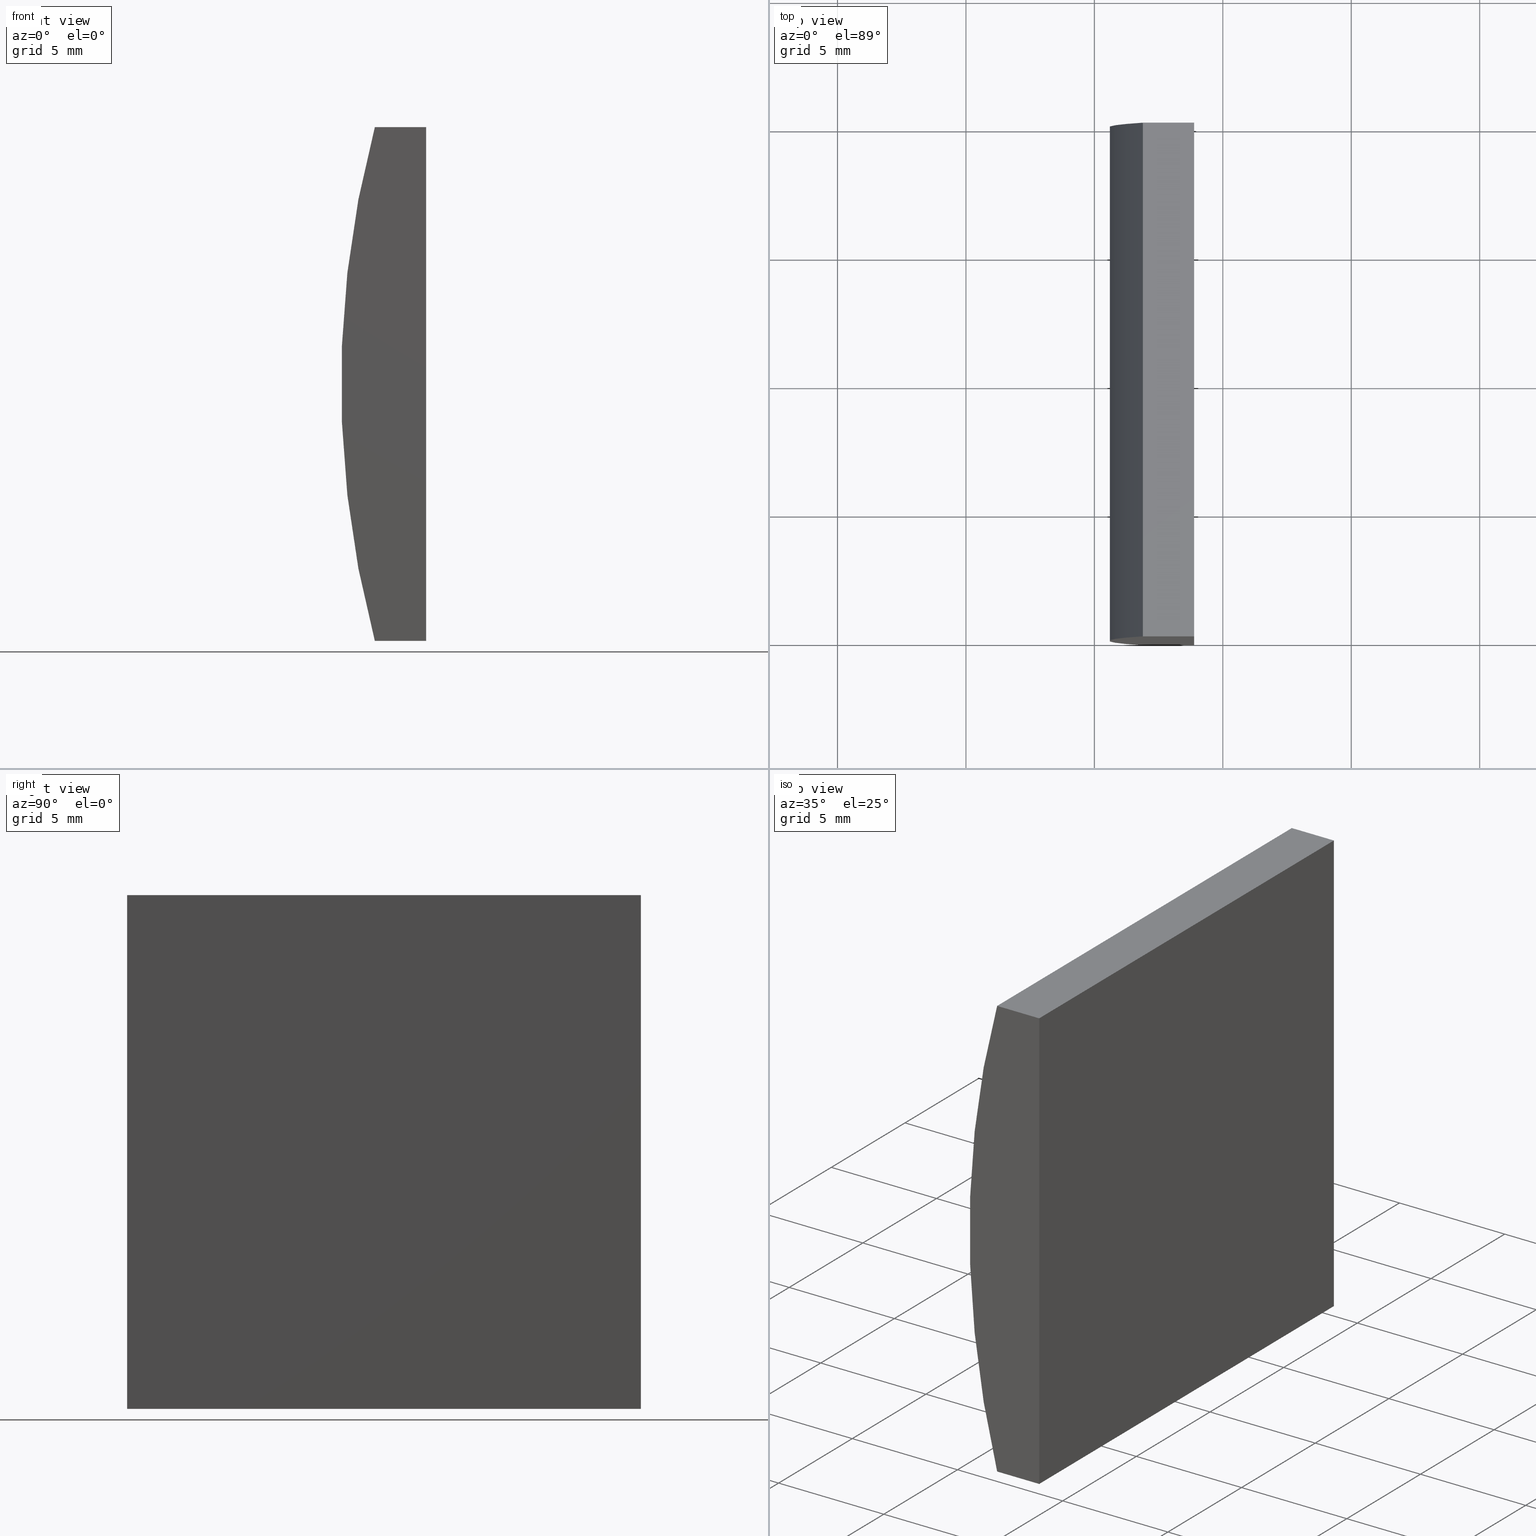
[diagram: canonical four-view strip — front | top / right | iso, engineering-drawing reading convention]
A machine part, canonical four-view strip (front | top / right | iso — engineering-drawing reading convention). The complete STEP part file that produces these views, byte-faithful:
ISO-10303-21;
HEADER;
FILE_DESCRIPTION (( 'STEP AP214' ),
    '1' );
FILE_NAME ('155030.STEP',
    '2019-06-17T06:29:10',
    ( 'user' ),
    ( '΢���й�' ),
    'SwSTEP 2.0',
    'SolidWorks 2016',
    '' );
FILE_SCHEMA (( 'AUTOMOTIVE_DESIGN' ));
ENDSEC;

DATA;
#1 =( GEOMETRIC_REPRESENTATION_CONTEXT ( 3 ) GLOBAL_UNCERTAINTY_ASSIGNED_CONTEXT ( ( #176 ) ) GLOBAL_UNIT_ASSIGNED_CONTEXT ( ( #184, #175, #6 ) ) REPRESENTATION_CONTEXT ( 'NONE', 'WORKASPACE' ) );
#2 = PRESENTATION_STYLE_ASSIGNMENT (( #129 ) ) ;
#3 = VECTOR ( 'NONE', #66, 1000.000000000000000 ) ;
#4 = VECTOR ( 'NONE', #86, 1000.000000000000000 ) ;
#5 = CARTESIAN_POINT ( 'NONE',  ( -31.11479566514874100, 20.00000000000000000, -9.999999999999992900 ) ) ;
#6 =( NAMED_UNIT ( * ) SI_UNIT ( $, .STERADIAN. ) SOLID_ANGLE_UNIT ( ) );
#7 = FILL_AREA_STYLE ('',( #202 ) ) ;
#8 = ORIENTED_EDGE ( 'NONE', *, *, #19, .T. ) ;
#9 = CARTESIAN_POINT ( 'NONE',  ( -31.11479566514874100, 20.00000000000000000, -9.999999999999992900 ) ) ;
#10 = ORIENTED_EDGE ( 'NONE', *, *, #197, .F. ) ;
#11 = ORIENTED_EDGE ( 'NONE', *, *, #197, .T. ) ;
#12 = EDGE_LOOP ( 'NONE', ( #132, #143, #78, #101 ) ) ;
#13 = SHAPE_DEFINITION_REPRESENTATION ( #137, #39 ) ;
#14 = VERTEX_POINT ( 'NONE', #141 ) ;
#15 = ADVANCED_FACE ( 'NONE', ( #193 ), #200, .F. ) ;
#16 = PLANE ( 'NONE',  #63 ) ;
#17 = DIRECTION ( 'NONE',  ( 1.000000000000000000, 0.0000000000000000000, 0.0000000000000000000 ) ) ;
#18 = ORIENTED_EDGE ( 'NONE', *, *, #22, .T. ) ;
#19 = EDGE_CURVE ( 'NONE', #187, #62, #117, .T. ) ;
#20 = CARTESIAN_POINT ( 'NONE',  ( -33.11329443411465000, 20.00000000000000000, -10.00000000000000000 ) ) ;
#21 = ORIENTED_EDGE ( 'NONE', *, *, #170, .F. ) ;
#22 = EDGE_CURVE ( 'NONE', #14, #187, #148, .T. ) ;
#23 = SURFACE_SIDE_STYLE ('',( #80 ) ) ;
#24 = CARTESIAN_POINT ( 'NONE',  ( -31.11479566514874100, 20.00000000000000000, -9.999999999999992900 ) ) ;
#25 = PRODUCT_DEFINITION_CONTEXT ( 'detailed design', #64, 'design' ) ;
#26 = AXIS2_PLACEMENT_3D ( 'NONE', #30, #82, #58 ) ;
#27 = AXIS2_PLACEMENT_3D ( 'NONE', #146, #38, #53 ) ;
#28 = LINE ( 'NONE', #5, #169 ) ;
#29 = UNCERTAINTY_MEASURE_WITH_UNIT (LENGTH_MEASURE( 1.000000000000000100E-005 ), #164, 'distance_accuracy_value', 'NONE');
#30 = CARTESIAN_POINT ( 'NONE',  ( 4.355204334851265500, 0.0000000000000000000, 4.286263797015675000E-017 ) ) ;
#31 = APPLICATION_PROTOCOL_DEFINITION ( 'draft international standard', 'automotive_design', 1998, #64 ) ;
#32 = CLOSED_SHELL ( 'NONE', ( #52, #173, #177, #15, #90, #49 ) ) ;
#33 =( NAMED_UNIT ( * ) PLANE_ANGLE_UNIT ( ) SI_UNIT ( $, .RADIAN. ) );
#34 = SURFACE_SIDE_STYLE ('',( #138 ) ) ;
#35 = DIRECTION ( 'NONE',  ( 0.0000000000000000000, 0.0000000000000000000, 1.000000000000000000 ) ) ;
#36 = VECTOR ( 'NONE', #113, 1000.000000000000000 ) ;
#37 = DIRECTION ( 'NONE',  ( -0.0000000000000000000, -1.000000000000000000, -0.0000000000000000000 ) ) ;
#38 = DIRECTION ( 'NONE',  ( 0.0000000000000000000, 1.000000000000000000, 0.0000000000000000000 ) ) ;
#39 = ADVANCED_BREP_SHAPE_REPRESENTATION ( '155030', ( #186, #88 ), #48 ) ;
#40 = DIRECTION ( 'NONE',  ( -1.000000000000000000, 0.0000000000000000000, -0.0000000000000000000 ) ) ;
#41 = VECTOR ( 'NONE', #201, 1000.000000000000000 ) ;
#42 = EDGE_CURVE ( 'NONE', #62, #130, #61, .T. ) ;
#43 = AXIS2_PLACEMENT_3D ( 'NONE', #180, #124, #40 ) ;
#44 = DIRECTION ( 'NONE',  ( -0.0000000000000000000, -1.000000000000000000, -0.0000000000000000000 ) ) ;
#45 = VERTEX_POINT ( 'NONE', #69 ) ;
#46 = VECTOR ( 'NONE', #44, 1000.000000000000000 ) ;
#47 = EDGE_CURVE ( 'NONE', #199, #130, #134, .T. ) ;
#48 =( GEOMETRIC_REPRESENTATION_CONTEXT ( 3 ) GLOBAL_UNCERTAINTY_ASSIGNED_CONTEXT ( ( #116 ) ) GLOBAL_UNIT_ASSIGNED_CONTEXT ( ( #57, #50, #51 ) ) REPRESENTATION_CONTEXT ( 'NONE', 'WORKASPACE' ) );
#49 = ADVANCED_FACE ( 'NONE', ( #188 ), #114, .F. ) ;
#50 =( NAMED_UNIT ( * ) PLANE_ANGLE_UNIT ( ) SI_UNIT ( $, .RADIAN. ) );
#51 =( NAMED_UNIT ( * ) SI_UNIT ( $, .STERADIAN. ) SOLID_ANGLE_UNIT ( ) );
#52 = ADVANCED_FACE ( 'NONE', ( #150 ), #105, .T. ) ;
#53 = DIRECTION ( 'NONE',  ( 0.0000000000000000000, -0.0000000000000000000, 1.000000000000000000 ) ) ;
#54 = DIRECTION ( 'NONE',  ( 0.0000000000000000000, 1.000000000000000000, 0.0000000000000000000 ) ) ;
#55 = VECTOR ( 'NONE', #70, 1000.000000000000000 ) ;
#56 = FACE_OUTER_BOUND ( 'NONE', #12, .T. ) ;
#57 =( LENGTH_UNIT ( ) NAMED_UNIT ( * ) SI_UNIT ( .MILLI., .METRE. ) );
#58 = DIRECTION ( 'NONE',  ( 0.0000000000000000000, 0.0000000000000000000, 1.000000000000000000 ) ) ;
#59 = EDGE_CURVE ( 'NONE', #45, #172, #107, .T. ) ;
#60 = EDGE_CURVE ( 'NONE', #172, #204, #119, .T. ) ;
#61 = CIRCLE ( 'NONE', #26, 38.78000000000000100 ) ;
#62 = VERTEX_POINT ( 'NONE', #125 ) ;
#63 = AXIS2_PLACEMENT_3D ( 'NONE', #121, #54, #110 ) ;
#64 = APPLICATION_CONTEXT ( 'automotive_design' ) ;
#65 = APPLICATION_CONTEXT ( 'automotive_design' ) ;
#66 = DIRECTION ( 'NONE',  ( 1.000000000000000000, 0.0000000000000000000, 0.0000000000000000000 ) ) ;
#67 = CIRCLE ( 'NONE', #185, 38.78000000000000100 ) ;
#68 = LINE ( 'NONE', #131, #36 ) ;
#69 = CARTESIAN_POINT ( 'NONE',  ( -31.11479566514873700, 20.00000000000000000, 10.00000000000000000 ) ) ;
#70 = DIRECTION ( 'NONE',  ( 1.000000000000000000, 0.0000000000000000000, 0.0000000000000000000 ) ) ;
#71 = ORIENTED_EDGE ( 'NONE', *, *, #22, .F. ) ;
#72 = CARTESIAN_POINT ( 'NONE',  ( -31.11479566514874100, 0.0000000000000000000, -9.999999999999992900 ) ) ;
#73 = AXIS2_PLACEMENT_3D ( 'NONE', #161, #84, #178 ) ;
#74 = APPLICATION_PROTOCOL_DEFINITION ( 'draft international standard', 'automotive_design', 1998, #65 ) ;
#75 = ORIENTED_EDGE ( 'NONE', *, *, #189, .F. ) ;
#76 = VECTOR ( 'NONE', #91, 1000.000000000000000 ) ;
#77 = PRESENTATION_STYLE_ASSIGNMENT (( #144 ) ) ;
#78 = ORIENTED_EDGE ( 'NONE', *, *, #59, .T. ) ;
#79 = PRODUCT_DEFINITION ( 'δ֪', '', #106, #25 ) ;
#80 = SURFACE_STYLE_FILL_AREA ( #160 ) ;
#81 = ORIENTED_EDGE ( 'NONE', *, *, #190, .F. ) ;
#82 = DIRECTION ( 'NONE',  ( 0.0000000000000000000, 1.000000000000000000, 0.0000000000000000000 ) ) ;
#83 = CARTESIAN_POINT ( 'NONE',  ( 4.355204334851265500, 20.00000000000000000, 4.286263797015675000E-017 ) ) ;
#84 = DIRECTION ( 'NONE',  ( -0.0000000000000000000, -1.000000000000000000, -0.0000000000000000000 ) ) ;
#85 = DIRECTION ( 'NONE',  ( -3.469446951953615200E-016, -0.0000000000000000000, -1.000000000000000000 ) ) ;
#86 = DIRECTION ( 'NONE',  ( -1.000000000000000000, -0.0000000000000000000, -3.472053128908184100E-015 ) ) ;
#87 = ORIENTED_EDGE ( 'NONE', *, *, #181, .T. ) ;
#88 = AXIS2_PLACEMENT_3D ( 'NONE', #96, #195, #17 ) ;
#89 = EDGE_LOOP ( 'NONE', ( #157, #98, #71, #10 ) ) ;
#90 = ADVANCED_FACE ( 'NONE', ( #56 ), #16, .T. ) ;
#91 = DIRECTION ( 'NONE',  ( -1.000000000000000000, -0.0000000000000000000, -3.472053128908184100E-015 ) ) ;
#92 = COLOUR_RGB ( '',1.000000000000000000, 1.000000000000000000, 1.000000000000000000 ) ;
#93 = DIRECTION ( 'NONE',  ( -1.000000000000000000, 0.0000000000000000000, 3.469446951953615200E-016 ) ) ;
#94 = CARTESIAN_POINT ( 'NONE',  ( -33.11329443411465000, 20.00000000000000000, 10.00000000000000000 ) ) ;
#95 = CARTESIAN_POINT ( 'NONE',  ( -33.11329443411465000, 20.00000000000000000, -10.00000000000000000 ) ) ;
#96 = CARTESIAN_POINT ( 'NONE',  ( 0.0000000000000000000, 0.0000000000000000000, 0.0000000000000000000 ) ) ;
#97 = VECTOR ( 'NONE', #85, 1000.000000000000000 ) ;
#98 = ORIENTED_EDGE ( 'NONE', *, *, #19, .F. ) ;
#99 = FILL_AREA_STYLE_COLOUR ( '', #92 ) ;
#100 = CARTESIAN_POINT ( 'NONE',  ( -33.11329443411465000, 20.00000000000000000, 10.00000000000000000 ) ) ;
#101 = ORIENTED_EDGE ( 'NONE', *, *, #60, .T. ) ;
#102 = PRESENTATION_LAYER_ASSIGNMENT (  '', '', ( #147 ) ) ;
#103 = VECTOR ( 'NONE', #128, 1000.000000000000000 ) ;
#104 = ORIENTED_EDGE ( 'NONE', *, *, #194, .T. ) ;
#105 = CYLINDRICAL_SURFACE ( 'NONE', #73, 38.78000000000000100 ) ;
#106 = PRODUCT_DEFINITION_FORMATION_WITH_SPECIFIED_SOURCE ( '�κ�', '', #149, .NOT_KNOWN. ) ;
#107 = LINE ( 'NONE', #9, #41 ) ;
#108 = ORIENTED_EDGE ( 'NONE', *, *, #47, .F. ) ;
#109 = ORIENTED_EDGE ( 'NONE', *, *, #60, .F. ) ;
#110 = DIRECTION ( 'NONE',  ( 0.0000000000000000000, -0.0000000000000000000, 1.000000000000000000 ) ) ;
#111 = PRESENTATION_LAYER_ASSIGNMENT (  '', '', ( #126 ) ) ;
#112 = CARTESIAN_POINT ( 'NONE',  ( -31.11479566514874100, 0.0000000000000000000, -9.999999999999992900 ) ) ;
#113 = DIRECTION ( 'NONE',  ( -0.0000000000000000000, -1.000000000000000000, -0.0000000000000000000 ) ) ;
#114 = PLANE ( 'NONE',  #27 ) ;
#115 = CARTESIAN_POINT ( 'NONE',  ( -33.11329443411465000, 0.0000000000000000000, -10.00000000000000000 ) ) ;
#116 = UNCERTAINTY_MEASURE_WITH_UNIT (LENGTH_MEASURE( 1.000000000000000100E-005 ), #57, 'distance_accuracy_value', 'NONE');
#117 = LINE ( 'NONE', #115, #4 ) ;
#118 = ORIENTED_EDGE ( 'NONE', *, *, #194, .F. ) ;
#119 = LINE ( 'NONE', #20, #76 ) ;
#120 = FACE_OUTER_BOUND ( 'NONE', #142, .T. ) ;
#121 = CARTESIAN_POINT ( 'NONE',  ( 4.355204334851265500, 20.00000000000000000, 4.286263797015675000E-017 ) ) ;
#122 = CARTESIAN_POINT ( 'NONE',  ( -31.11479566514874100, 20.00000000000000000, -9.999999999999992900 ) ) ;
#123 = ORIENTED_EDGE ( 'NONE', *, *, #59, .F. ) ;
#124 = DIRECTION ( 'NONE',  ( 0.0000000000000000000, 0.0000000000000000000, -1.000000000000000000 ) ) ;
#125 = CARTESIAN_POINT ( 'NONE',  ( -33.11329443411465000, 0.0000000000000000000, -10.00000000000000000 ) ) ;
#126 = STYLED_ITEM ( 'NONE', ( #77 ), #39 ) ;
#127 = FACE_OUTER_BOUND ( 'NONE', #168, .T. ) ;
#128 = DIRECTION ( 'NONE',  ( -0.0000000000000000000, -1.000000000000000000, -0.0000000000000000000 ) ) ;
#129 = SURFACE_STYLE_USAGE ( .BOTH. , #23 ) ;
#130 = VERTEX_POINT ( 'NONE', #192 ) ;
#131 = CARTESIAN_POINT ( 'NONE',  ( -33.11329443411465000, 20.00000000000000000, -10.00000000000000000 ) ) ;
#132 = ORIENTED_EDGE ( 'NONE', *, *, #189, .T. ) ;
#133 = MECHANICAL_DESIGN_GEOMETRIC_PRESENTATION_REPRESENTATION (  '', ( #147 ), #1 ) ;
#134 = LINE ( 'NONE', #100, #46 ) ;
#135 = EDGE_LOOP ( 'NONE', ( #152, #108, #75, #87 ) ) ;
#136 = MECHANICAL_DESIGN_GEOMETRIC_PRESENTATION_REPRESENTATION (  '', ( #126 ), #158 ) ;
#137 = PRODUCT_DEFINITION_SHAPE ( 'NONE', 'NONE',  #79 ) ;
#138 = SURFACE_STYLE_FILL_AREA ( #7 ) ;
#139 = AXIS2_PLACEMENT_3D ( 'NONE', #122, #93, #163 ) ;
#140 = DIRECTION ( 'NONE',  ( 0.0000000000000000000, 1.000000000000000000, 0.0000000000000000000 ) ) ;
#141 = CARTESIAN_POINT ( 'NONE',  ( -31.11479566514873700, 0.0000000000000000000, 10.00000000000000000 ) ) ;
#142 = EDGE_LOOP ( 'NONE', ( #11, #118, #81, #171 ) ) ;
#143 = ORIENTED_EDGE ( 'NONE', *, *, #190, .T. ) ;
#144 = SURFACE_STYLE_USAGE ( .BOTH. , #34 ) ;
#145 = CARTESIAN_POINT ( 'NONE',  ( -31.11479566514873700, 20.00000000000000000, 10.00000000000000000 ) ) ;
#146 = CARTESIAN_POINT ( 'NONE',  ( 4.355204334851265500, 0.0000000000000000000, 4.286263797015675000E-017 ) ) ;
#147 = STYLED_ITEM ( 'NONE', ( #2 ), #186 ) ;
#148 = LINE ( 'NONE', #72, #97 ) ;
#149 = PRODUCT ( '155030', '155030', '', ( #165 ) ) ;
#150 = FACE_OUTER_BOUND ( 'NONE', #135, .T. ) ;
#151 = ORIENTED_EDGE ( 'NONE', *, *, #170, .T. ) ;
#152 = ORIENTED_EDGE ( 'NONE', *, *, #42, .T. ) ;
#153 = EDGE_LOOP ( 'NONE', ( #8, #196, #109, #151 ) ) ;
#154 = DIRECTION ( 'NONE',  ( 1.000000000000000000, 0.0000000000000000000, 3.472053128908184100E-015 ) ) ;
#155 = LINE ( 'NONE', #145, #103 ) ;
#156 = CARTESIAN_POINT ( 'NONE',  ( -33.11329443411465000, 0.0000000000000000000, 10.00000000000000000 ) ) ;
#157 = ORIENTED_EDGE ( 'NONE', *, *, #42, .F. ) ;
#158 =( GEOMETRIC_REPRESENTATION_CONTEXT ( 3 ) GLOBAL_UNCERTAINTY_ASSIGNED_CONTEXT ( ( #29 ) ) GLOBAL_UNIT_ASSIGNED_CONTEXT ( ( #164, #33, #159 ) ) REPRESENTATION_CONTEXT ( 'NONE', 'WORKASPACE' ) );
#159 =( NAMED_UNIT ( * ) SI_UNIT ( $, .STERADIAN. ) SOLID_ANGLE_UNIT ( ) );
#160 = FILL_AREA_STYLE ('',( #99 ) ) ;
#161 = CARTESIAN_POINT ( 'NONE',  ( 4.355204334851265500, 20.00000000000000000, 4.286263797015675000E-017 ) ) ;
#162 = CARTESIAN_POINT ( 'NONE',  ( -33.11329443411465000, 20.00000000000000000, -10.00000000000000000 ) ) ;
#163 = DIRECTION ( 'NONE',  ( 3.469446951953615200E-016, 0.0000000000000000000, 1.000000000000000000 ) ) ;
#164 =( LENGTH_UNIT ( ) NAMED_UNIT ( * ) SI_UNIT ( .MILLI., .METRE. ) );
#165 = PRODUCT_CONTEXT ( 'NONE', #65, 'mechanical' ) ;
#166 = PRODUCT_RELATED_PRODUCT_CATEGORY ( 'part', '', ( #149 ) ) ;
#167 = LINE ( 'NONE', #94, #55 ) ;
#168 = EDGE_LOOP ( 'NONE', ( #18, #21, #123, #104 ) ) ;
#169 = VECTOR ( 'NONE', #37, 1000.000000000000000 ) ;
#170 = EDGE_CURVE ( 'NONE', #172, #187, #28, .T. ) ;
#171 = ORIENTED_EDGE ( 'NONE', *, *, #47, .T. ) ;
#172 = VERTEX_POINT ( 'NONE', #24 ) ;
#173 = ADVANCED_FACE ( 'NONE', ( #120 ), #182, .F. ) ;
#174 = AXIS2_PLACEMENT_3D ( 'NONE', #162, #183, #154 ) ;
#175 =( NAMED_UNIT ( * ) PLANE_ANGLE_UNIT ( ) SI_UNIT ( $, .RADIAN. ) );
#176 = UNCERTAINTY_MEASURE_WITH_UNIT (LENGTH_MEASURE( 1.000000000000000100E-005 ), #184, 'distance_accuracy_value', 'NONE');
#177 = ADVANCED_FACE ( 'NONE', ( #127 ), #191, .F. ) ;
#178 = DIRECTION ( 'NONE',  ( 0.0000000000000000000, 0.0000000000000000000, -1.000000000000000000 ) ) ;
#179 = CARTESIAN_POINT ( 'NONE',  ( -33.11329443411465000, 20.00000000000000000, 10.00000000000000000 ) ) ;
#180 = CARTESIAN_POINT ( 'NONE',  ( -33.11329443411465000, 20.00000000000000000, 10.00000000000000000 ) ) ;
#181 = EDGE_CURVE ( 'NONE', #204, #62, #68, .T. ) ;
#182 = PLANE ( 'NONE',  #43 ) ;
#183 = DIRECTION ( 'NONE',  ( -3.472053128908184100E-015, 0.0000000000000000000, 1.000000000000000000 ) ) ;
#184 =( LENGTH_UNIT ( ) NAMED_UNIT ( * ) SI_UNIT ( .MILLI., .METRE. ) );
#185 = AXIS2_PLACEMENT_3D ( 'NONE', #83, #140, #35 ) ;
#186 = MANIFOLD_SOLID_BREP ( '͹̨-����1', #32 ) ;
#187 = VERTEX_POINT ( 'NONE', #112 ) ;
#188 = FACE_OUTER_BOUND ( 'NONE', #89, .T. ) ;
#189 = EDGE_CURVE ( 'NONE', #204, #199, #67, .T. ) ;
#190 = EDGE_CURVE ( 'NONE', #199, #45, #167, .T. ) ;
#191 = PLANE ( 'NONE',  #139 ) ;
#192 = CARTESIAN_POINT ( 'NONE',  ( -33.11329443411465000, 0.0000000000000000000, 10.00000000000000000 ) ) ;
#193 = FACE_OUTER_BOUND ( 'NONE', #153, .T. ) ;
#194 = EDGE_CURVE ( 'NONE', #45, #14, #155, .T. ) ;
#195 = DIRECTION ( 'NONE',  ( 0.0000000000000000000, 0.0000000000000000000, 1.000000000000000000 ) ) ;
#196 = ORIENTED_EDGE ( 'NONE', *, *, #181, .F. ) ;
#197 = EDGE_CURVE ( 'NONE', #130, #14, #198, .T. ) ;
#198 = LINE ( 'NONE', #156, #3 ) ;
#199 = VERTEX_POINT ( 'NONE', #179 ) ;
#200 = PLANE ( 'NONE',  #174 ) ;
#201 = DIRECTION ( 'NONE',  ( -3.469446951953615200E-016, -0.0000000000000000000, -1.000000000000000000 ) ) ;
#202 = FILL_AREA_STYLE_COLOUR ( '', #203 ) ;
#203 = COLOUR_RGB ( '',1.000000000000000000, 1.000000000000000000, 1.000000000000000000 ) ;
#204 = VERTEX_POINT ( 'NONE', #95 ) ;
ENDSEC;
END-ISO-10303-21;
